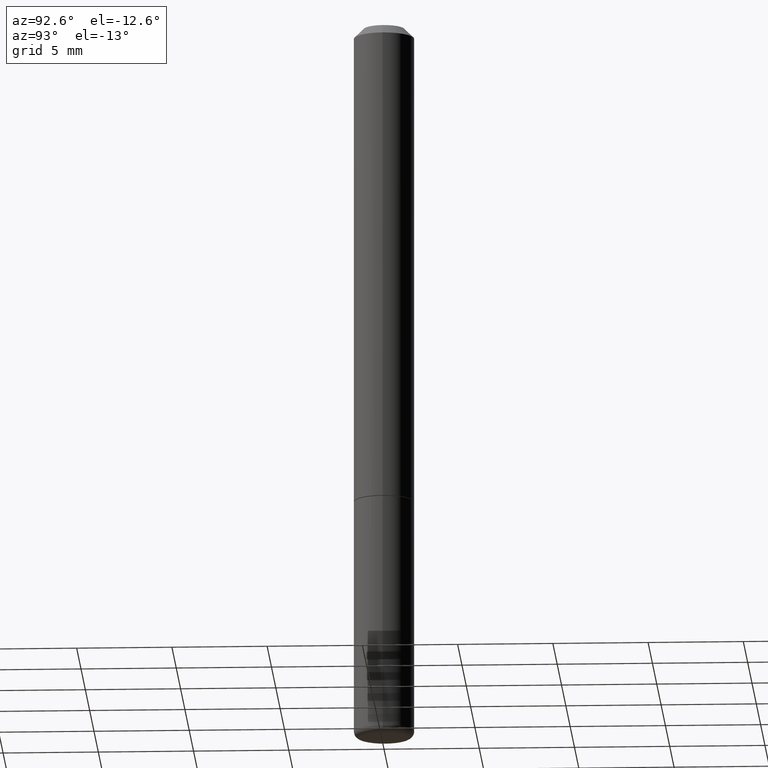
[diagram: clean part render]
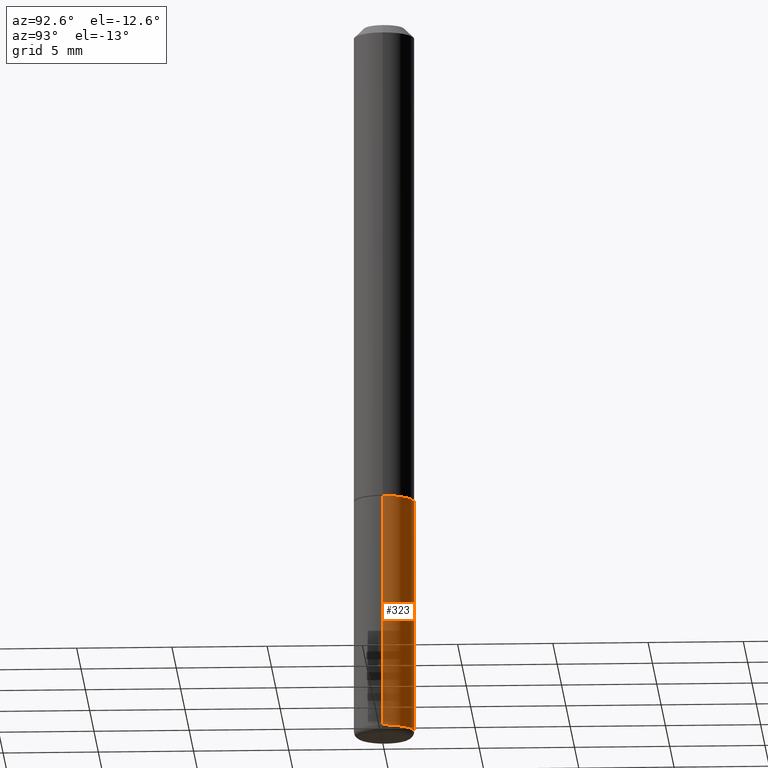
[diagram: same view with one face highlighted and labeled with its STEP entity id]
A machine part, auxiliary view. The second image highlights one B-rep face of the part: STEP entity #323.
In plain terms, the highlighted cylindrical surface (edge-blend (fillet) strip) has radius 1.5875 mm, axis along (-0, 0, 1).
Its self-contained STEP definition (entity closure, byte-faithful):
#3 = CARTESIAN_POINT ( 'NONE',  ( 2.445468806185137438E-29, -3.491481338843146371E-15, -1.000000000000000222 ) ) ;
#13 = CARTESIAN_POINT ( 'NONE',  ( 0.06250000000000001388, -3.927916506198538435E-15, -1.000000000000000222 ) ) ;
#30 = DIRECTION ( 'NONE',  ( -2.445468806185136877E-29, 3.491481338843145188E-15, 1.000000000000000000 ) ) ;
#34 = DIRECTION ( 'NONE',  ( -2.445468806185136877E-29, 3.491481338843145188E-15, 1.000000000000000000 ) ) ;
#36 = DIRECTION ( 'NONE',  ( 1.000000000000000000, -6.982962677686269077E-15, 0.000000000000000000 ) ) ;
#46 = CARTESIAN_POINT ( 'NONE',  ( 0.06249999999999975020, -5.621356729844913983E-15, -1.485020556978682515 ) ) ;
#53 = EDGE_CURVE ( 'NONE', #285, #140, #325, .T. ) ;
#73 = DIRECTION ( 'NONE',  ( 1.000000000000000000, -6.982962677686266711E-15, 4.876176775795935232E-29 ) ) ;
#103 = CYLINDRICAL_SURFACE ( 'NONE', #200, 0.06249999999999988204 ) ;
#133 = CIRCLE ( 'NONE', #232, 0.06250000000000001388 ) ;
#134 = DIRECTION ( 'NONE',  ( -2.445468806185136597E-29, 3.491481338843145583E-15, 1.000000000000000000 ) ) ;
#137 = EDGE_LOOP ( 'NONE', ( #314, #351, #168, #235 ) ) ;
#140 = VERTEX_POINT ( 'NONE', #335 ) ;
#156 = VERTEX_POINT ( 'NONE', #13 ) ;
#168 = ORIENTED_EDGE ( 'NONE', *, *, #292, .F. ) ;
#200 = AXIS2_PLACEMENT_3D ( 'NONE', #274, #381, #73 ) ;
#205 = VERTEX_POINT ( 'NONE', #46 ) ;
#213 = CARTESIAN_POINT ( 'NONE',  ( -0.06249999999999975020, -3.894112240816274685E-15, -1.485020556978682515 ) ) ;
#232 = AXIS2_PLACEMENT_3D ( 'NONE', #3, #134, #36 ) ;
#235 = ORIENTED_EDGE ( 'NONE', *, *, #411, .F. ) ;
#244 = AXIS2_PLACEMENT_3D ( 'NONE', #246, #347, #412 ) ;
#246 = CARTESIAN_POINT ( 'NONE',  ( 3.631571448635045368E-29, -5.184921562489524681E-15, -1.485020556978682515 ) ) ;
#248 = FACE_OUTER_BOUND ( 'NONE', #137, .T. ) ;
#268 = VECTOR ( 'NONE', #34, 39.37007874015748143 ) ;
#274 = CARTESIAN_POINT ( 'NONE',  ( 0.000000000000000000, 0.000000000000000000, 0.000000000000000000 ) ) ;
#282 = EDGE_CURVE ( 'NONE', #205, #285, #283, .T. ) ;
#283 = CIRCLE ( 'NONE', #244, 0.06249999999999975020 ) ;
#285 = VERTEX_POINT ( 'NONE', #213 ) ;
#287 = LINE ( 'NONE', #416, #268 ) ;
#292 = EDGE_CURVE ( 'NONE', #156, #140, #133, .T. ) ;
#314 = ORIENTED_EDGE ( 'NONE', *, *, #282, .T. ) ;
#323 = ADVANCED_FACE ( 'NONE', ( #248 ), #103, .T. ) ;
#325 = LINE ( 'NONE', #338, #427 ) ;
#335 = CARTESIAN_POINT ( 'NONE',  ( -0.06250000000000001388, -3.894112240816274685E-15, -1.000000000000000222 ) ) ;
#338 = CARTESIAN_POINT ( 'NONE',  ( -0.06249999999999988204, 4.440892098500617780E-16, -3.074334431409310158E-30 ) ) ;
#347 = DIRECTION ( 'NONE',  ( -2.445468806185136597E-29, 3.491481338843145583E-15, 1.000000000000000000 ) ) ;
#351 = ORIENTED_EDGE ( 'NONE', *, *, #53, .T. ) ;
#381 = DIRECTION ( 'NONE',  ( -2.445468806185136597E-29, 3.491481338843145583E-15, 1.000000000000000000 ) ) ;
#411 = EDGE_CURVE ( 'NONE', #205, #156, #287, .T. ) ;
#412 = DIRECTION ( 'NONE',  ( 1.000000000000000000, -6.982962677686259611E-15, 0.000000000000000000 ) ) ;
#416 = CARTESIAN_POINT ( 'NONE',  ( 0.06249999999999988204, -4.364351673553908312E-16, 3.047610484872453915E-30 ) ) ;
#427 = VECTOR ( 'NONE', #30, 39.37007874015748143 ) ;